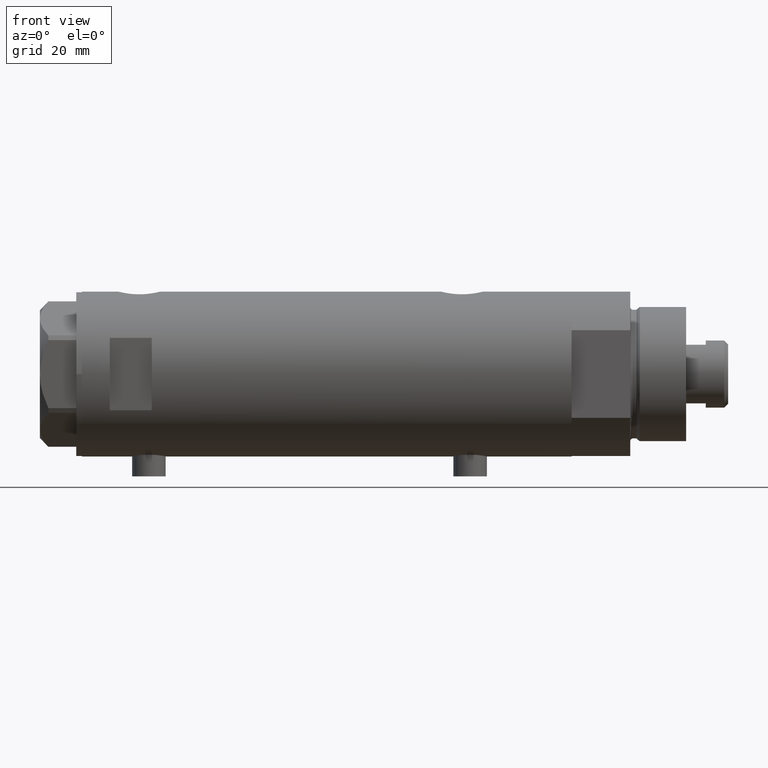
[diagram: clean part render]
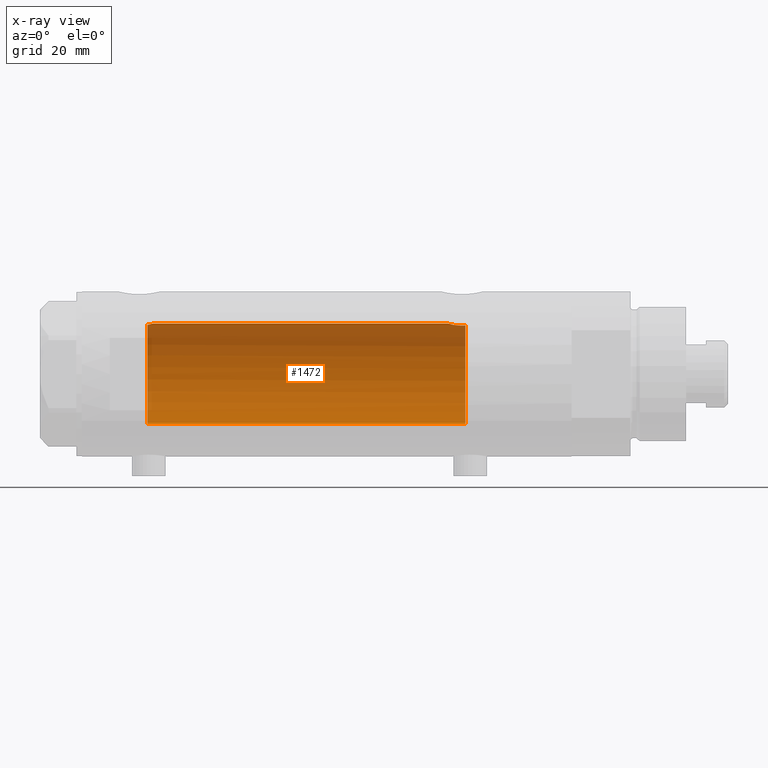
[diagram: x-ray — body ghosted, one internal face saturated and labeled with its STEP entity id]
A machine part, front view, then the same camera in x-ray: the body is ghosted and one INTERNAL B-rep face — a face not visible from any outside direction — is saturated and labeled: STEP entity #1472.
In plain terms, the highlighted cylindrical surface (partial cylindrical patch) has radius 18 mm, axis along (1, 0, -0).
Its self-contained STEP definition (entity closure, byte-faithful):
#9 = LINE ( 'NONE', #3065, #2201 ) ;
#114 = CARTESIAN_POINT ( 'NONE',  ( 17.68814035493779713, 3.348626323852637476, 63.55183600219631046 ) ) ;
#115 = CARTESIAN_POINT ( 'NONE',  ( 17.37157951943345680, 4.714681855650495912, -49.60000000000000142 ) ) ;
#116 = CARTESIAN_POINT ( 'NONE',  ( -18.00000000000000000, 0.000000000000000000, 64.09999999999999432 ) ) ;
#137 = CARTESIAN_POINT ( 'NONE',  ( 17.89217382667230183, 1.974183297225222233, 62.64981302266167518 ) ) ;
#163 = CARTESIAN_POINT ( 'NONE',  ( 18.00000000000000000, 5.958021437579254357E-16, -43.53499999999999659 ) ) ;
#204 = DIRECTION ( 'NONE',  ( -0.000000000000000000, -0.000000000000000000, -1.000000000000000000 ) ) ;
#205 = EDGE_CURVE ( 'NONE', #4015, #425, #3619, .T. ) ;
#280 = DIRECTION ( 'NONE',  ( -0.000000000000000000, -0.000000000000000000, -1.000000000000000000 ) ) ;
#350 = VERTEX_POINT ( 'NONE', #116 ) ;
#413 = CARTESIAN_POINT ( 'NONE',  ( -18.00000000000000000, 0.000000000000000000, -49.60000000000000853 ) ) ;
#425 = VERTEX_POINT ( 'NONE', #2113 ) ;
#457 = AXIS2_PLACEMENT_3D ( 'NONE', #3795, #4104, #2059 ) ;
#460 = CARTESIAN_POINT ( 'NONE',  ( 17.58783030962034388, 3.829911878881820719, 64.09999999999999432 ) ) ;
#507 = CARTESIAN_POINT ( 'NONE',  ( 17.78617492856930227, 2.770629413254892537, 63.09682049650069757 ) ) ;
#508 = CARTESIAN_POINT ( 'NONE',  ( 17.33262691996381477, 4.855935766715063551, -48.87488940890202826 ) ) ;
#516 = B_SPLINE_CURVE_WITH_KNOTS ( 'NONE', 3,
 ( #460, #864, #114, #3578, #507, #1891, #2607, #137, #3621, #1518, #3256, #2926, #2522, #1220 ),
 .UNSPECIFIED., .F., .F.,
 ( 4, 2, 2, 2, 2, 2, 4 ),
 ( 0.02614985543880327459, 0.02725214354003947445, 0.02780328759065756050, 0.02835443164127564308, 0.02890557569189372913, 0.02945671974251181519, 0.03055900784374798729 ),
 .UNSPECIFIED. ) ;
#840 = CARTESIAN_POINT ( 'NONE',  ( 17.83051055968251930, 2.469307448774133551, -44.20420614498793555 ) ) ;
#864 = CARTESIAN_POINT ( 'NONE',  ( 17.63704841537101586, 3.603891093161675663, 63.81145343596541863 ) ) ;
#865 = CARTESIAN_POINT ( 'NONE',  ( 17.43128843254318383, 4.489613141718952427, -46.51700003713170872 ) ) ;
#902 = CARTESIAN_POINT ( 'NONE',  ( 17.94405978035184290, 1.463580074031382683, -43.74553017623723861 ) ) ;
#1159 = ORIENTED_EDGE ( 'NONE', *, *, #4098, .F. ) ;
#1196 = CARTESIAN_POINT ( 'NONE',  ( 17.99716691696285764, 0.3685254503903832024, -43.54545042928660337 ) ) ;
#1220 = CARTESIAN_POINT ( 'NONE',  ( 18.00000000000000000, 0.000000000000000000, 62.23499999999999233 ) ) ;
#1222 = CARTESIAN_POINT ( 'NONE',  ( 17.78478726694685363, 2.779555353823082608, -44.40297143050466389 ) ) ;
#1224 = LINE ( 'NONE', #4278, #4424 ) ;
#1241 = CARTESIAN_POINT ( 'NONE',  ( 17.85236636886078898, 2.306694554785103435, -44.11264586133009402 ) ) ;
#1333 = AXIS2_PLACEMENT_3D ( 'NONE', #2358, #1664, #3744 ) ;
#1346 = ORIENTED_EDGE ( 'NONE', *, *, #2379, .F. ) ;
#1472 = ADVANCED_FACE ( 'NONE', ( #3402 ), #2726, .F. ) ;
#1518 = CARTESIAN_POINT ( 'NONE',  ( 17.94167814235965608, 1.458276351914870483, 62.45504464479716944 ) ) ;
#1519 = CARTESIAN_POINT ( 'NONE',  ( 17.33118376015917050, 4.861110225087390546, -48.13112109378173642 ) ) ;
#1549 = ORIENTED_EDGE ( 'NONE', *, *, #2812, .F. ) ;
#1619 = VERTEX_POINT ( 'NONE', #4376 ) ;
#1664 = DIRECTION ( 'NONE',  ( 0.000000000000000000, 0.000000000000000000, 1.000000000000000000 ) ) ;
#1775 = EDGE_CURVE ( 'NONE', #350, #4015, #9, .T. ) ;
#1851 = CARTESIAN_POINT ( 'NONE',  ( 17.71174132276682300, 3.211689381115077513, -44.74121359250872132 ) ) ;
#1861 = EDGE_CURVE ( 'NONE', #1619, #350, #2276, .T. ) ;
#1891 = CARTESIAN_POINT ( 'NONE',  ( 17.83158514913445458, 2.461498934476296974, 62.89965995681277633 ) ) ;
#2059 = DIRECTION ( 'NONE',  ( -1.000000000000000000, 0.000000000000000000, 0.000000000000000000 ) ) ;
#2087 = ORIENTED_EDGE ( 'NONE', *, *, #1775, .T. ) ;
#2113 = CARTESIAN_POINT ( 'NONE',  ( 17.37157951943345680, 4.714681855650495912, -49.60000000000000142 ) ) ;
#2170 = VERTEX_POINT ( 'NONE', #4095 ) ;
#2201 = VECTOR ( 'NONE', #280, 1000.000000000000000 ) ;
#2215 = CARTESIAN_POINT ( 'NONE',  ( 18.00000000000000355, 0.1844036484100904649, -43.53500000000000369 ) ) ;
#2236 = CARTESIAN_POINT ( 'NONE',  ( 17.91189082287941758, 1.809824880389073964, -43.86912370284670004 ) ) ;
#2255 = CARTESIAN_POINT ( 'NONE',  ( 17.68656644271517919, 3.347025706529859423, -44.86453774950911111 ) ) ;
#2276 = CIRCLE ( 'NONE', #1333, 18.00000000000000000 ) ;
#2358 = CARTESIAN_POINT ( 'NONE',  ( 0.000000000000000000, 0.000000000000000000, 64.09999999999999432 ) ) ;
#2379 = EDGE_CURVE ( 'NONE', #2170, #3062, #1224, .T. ) ;
#2522 = CARTESIAN_POINT ( 'NONE',  ( 17.99999999999999645, 0.3728474842072341811, 62.23499999999999943 ) ) ;
#2571 = CARTESIAN_POINT ( 'NONE',  ( 17.49030773641653269, 4.256160900234551292, -46.01469509681786718 ) ) ;
#2592 = CARTESIAN_POINT ( 'NONE',  ( 17.53642083926971296, 4.065376572064633542, -45.70260027543618264 ) ) ;
#2607 = CARTESIAN_POINT ( 'NONE',  ( 17.85293122918850273, 2.302201220737759346, 62.81031080804813627 ) ) ;
#2608 = CARTESIAN_POINT ( 'NONE',  ( 17.34085862114804044, 4.826483754267691495, -47.76145238513613833 ) ) ;
#2674 = DIRECTION ( 'NONE',  ( 0.000000000000000000, 0.000000000000000000, -1.000000000000000000 ) ) ;
#2726 = CYLINDRICAL_SURFACE ( 'NONE', #457, 18.00000000000000000 ) ;
#2760 = CARTESIAN_POINT ( 'NONE',  ( 0.000000000000000000, 0.000000000000000000, -49.60000000000000853 ) ) ;
#2779 = ORIENTED_EDGE ( 'NONE', *, *, #205, .T. ) ;
#2812 = EDGE_CURVE ( 'NONE', #1619, #2170, #516, .T. ) ;
#2923 = EDGE_LOOP ( 'NONE', ( #1346, #1549, #4287, #2087, #2779, #1159 ) ) ;
#2926 = CARTESIAN_POINT ( 'NONE',  ( 17.98843015915092636, 0.7391836159806548512, 62.27731130524779246 ) ) ;
#2944 = CARTESIAN_POINT ( 'NONE',  ( 17.38237957915196574, 4.675094569549003154, -47.04138980228257338 ) ) ;
#3062 = VERTEX_POINT ( 'NONE', #3112 ) ;
#3065 = CARTESIAN_POINT ( 'NONE',  ( -18.00000000000000000, 0.000000000000000000, 87.59999999999998010 ) ) ;
#3112 = CARTESIAN_POINT ( 'NONE',  ( 18.00000000000000000, 5.958021437579254357E-16, -43.53499999999999659 ) ) ;
#3213 = CARTESIAN_POINT ( 'NONE',  ( 17.41328271218089796, 4.558641711475903691, -46.69087254718661484 ) ) ;
#3253 = AXIS2_PLACEMENT_3D ( 'NONE', #2760, #2674, #4075 ) ;
#3256 = CARTESIAN_POINT ( 'NONE',  ( 17.95540531162506781, 1.279032093992333419, 62.40250861430338603 ) ) ;
#3257 = CARTESIAN_POINT ( 'NONE',  ( 17.98587882862718601, 0.7362002489460847121, -43.58746722239206406 ) ) ;
#3402 = FACE_OUTER_BOUND ( 'NONE', #2923, .T. ) ;
#3578 = CARTESIAN_POINT ( 'NONE',  ( 17.76196254920472128, 2.921230608637938264, 63.20535341986155231 ) ) ;
#3600 = CARTESIAN_POINT ( 'NONE',  ( 17.35631194664785681, 4.771042759406570077, -47.39667763205954998 ) ) ;
#3619 = CIRCLE ( 'NONE', #3253, 18.00000000000000000 ) ;
#3621 = CARTESIAN_POINT ( 'NONE',  ( 17.91007218376326193, 1.805463612197656831, 62.57866376881661097 ) ) ;
#3622 = CARTESIAN_POINT ( 'NONE',  ( 17.76085061188611292, 2.927954048074872251, -44.51043039029094217 ) ) ;
#3648 = CARTESIAN_POINT ( 'NONE',  ( 17.32928165965087786, 4.867855194001448282, -48.31899018256648048 ) ) ;
#3668 = CARTESIAN_POINT ( 'NONE',  ( 17.63589737371338373, 3.604488512479872231, -45.12742655266250580 ) ) ;
#3744 = DIRECTION ( 'NONE',  ( 1.000000000000000000, 0.000000000000000000, 0.000000000000000000 ) ) ;
#3795 = CARTESIAN_POINT ( 'NONE',  ( 0.000000000000000000, 0.000000000000000000, 87.59999999999998010 ) ) ;
#3981 = CARTESIAN_POINT ( 'NONE',  ( 17.34671983132639994, 4.806279138776326398, -49.24012329268314403 ) ) ;
#4015 = VERTEX_POINT ( 'NONE', #413 ) ;
#4075 = DIRECTION ( 'NONE',  ( -1.000000000000000000, 0.000000000000000000, 0.000000000000000000 ) ) ;
#4095 = CARTESIAN_POINT ( 'NONE',  ( 18.00000000000000000, 0.000000000000000000, 62.23499999999999233 ) ) ;
#4098 = EDGE_CURVE ( 'NONE', #3062, #425, #4214, .T. ) ;
#4104 = DIRECTION ( 'NONE',  ( -0.000000000000000000, -0.000000000000000000, -1.000000000000000000 ) ) ;
#4214 = B_SPLINE_CURVE_WITH_KNOTS ( 'NONE', 3,
 ( #163, #2215, #1196, #3257, #4300, #902, #2236, #1241, #840, #1222, #3622, #1851, #2255, #3668, #4250, #2592, #2571, #865, #3213, #2944, #3600, #2608, #1519, #3648, #508, #3981, #115 ),
 .UNSPECIFIED., .F., .F.,
 ( 4, 2, 2, 2, 2, 2, 2, 2, 2, 2, 1, 2, 2, 4 ),
 ( 0.01528157848519461244, 0.01583467956029641424, 0.01638778063539821431, 0.01749398278560182138, 0.01804708386070362491, 0.01860018493580542845, 0.01915328601090723198, 0.01970638708600903899, 0.02081258923621264259, 0.02136569031131445653, 0.02191879138641626701, 0.02247189246151808095, 0.02302499353661989143, 0.02413119568682349503 ),
 .UNSPECIFIED. ) ;
#4250 = CARTESIAN_POINT ( 'NONE',  ( 17.61032289555864239, 3.726910670425183536, -45.26756985850233406 ) ) ;
#4278 = CARTESIAN_POINT ( 'NONE',  ( 18.00000000000000000, 2.204364238465235428E-15, 87.59999999999998010 ) ) ;
#4287 = ORIENTED_EDGE ( 'NONE', *, *, #1861, .T. ) ;
#4300 = CARTESIAN_POINT ( 'NONE',  ( 17.97733715731491344, 0.9209699998971166979, -43.61935966604425374 ) ) ;
#4376 = CARTESIAN_POINT ( 'NONE',  ( 17.58783030962034388, 3.829911878881820719, 64.09999999999999432 ) ) ;
#4424 = VECTOR ( 'NONE', #204, 1000.000000000000000 ) ;